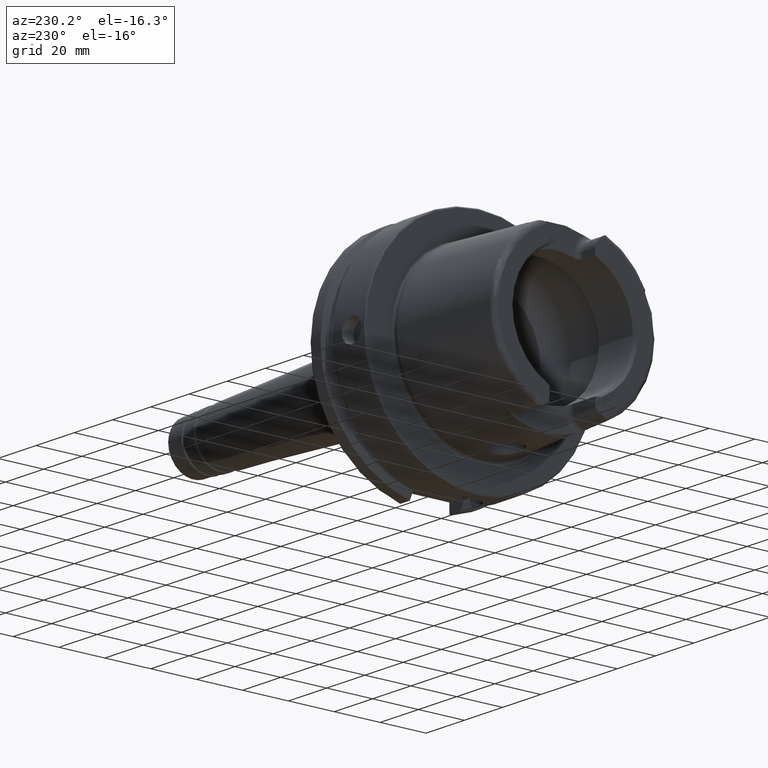
[diagram: clean part render]
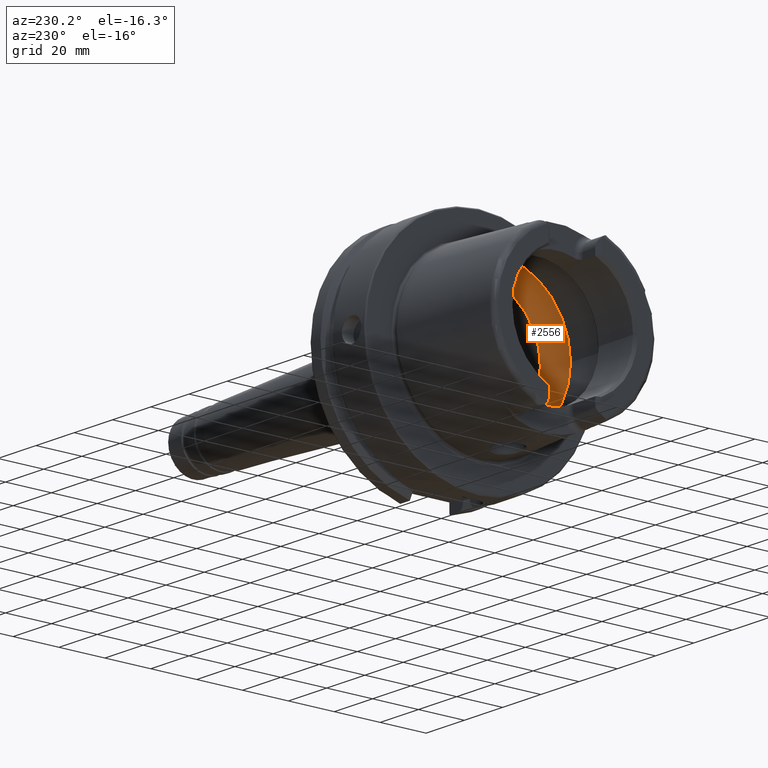
[diagram: same view with one face highlighted and labeled with its STEP entity id]
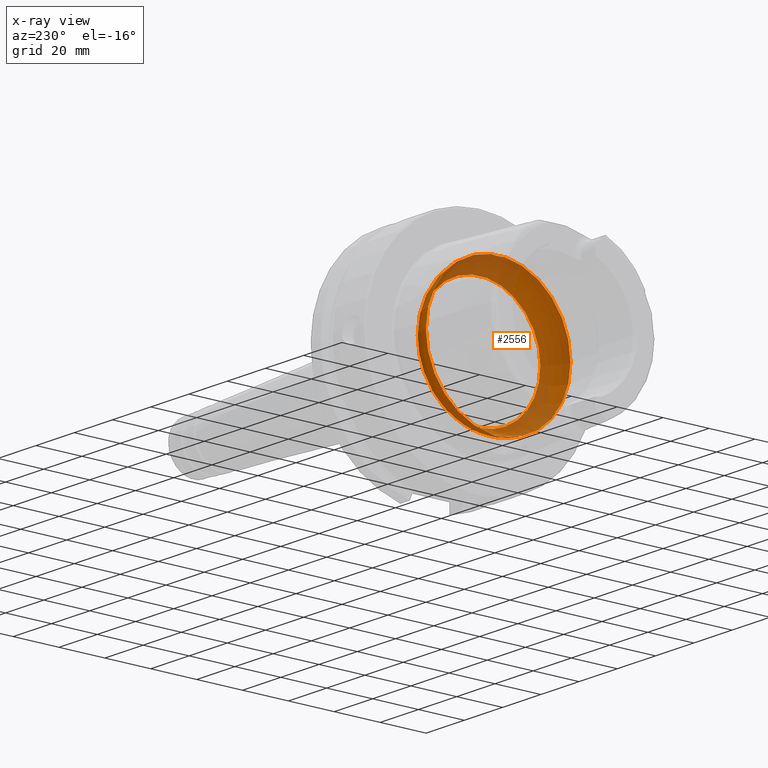
[diagram: x-ray of the same camera — body ghosted, the highlighted face saturated]
A machine part, auxiliary view. The second image highlights one B-rep face of the part: STEP entity #2556.
The next image is the same camera in x-ray: the body ghosted, the highlighted face saturated — about 35% of this face is hidden behind the body in this view.
In plain terms, the highlighted toroidal blend (fillet) surface has major radius 19.5 mm and minor (blend) radius 12 mm.
Its self-contained STEP definition (entity closure, byte-faithful):
#48=B_SPLINE_CURVE_WITH_KNOTS('',3,(#4603,#4604,#4605,#4606,#4607,#4608,
#4609,#4610,#4611,#4612),.UNSPECIFIED.,.F.,.F.,(4,2,2,2,4),(-0.606113644645353,
-0.532141714710631,-0.407956541554012,-0.344441109025195,-0.303157612487306),
 .UNSPECIFIED.);
#50=B_SPLINE_CURVE_WITH_KNOTS('',3,(#4645,#4646,#4647,#4648,#4649,#4650,
#4651,#4652,#4653,#4654),.UNSPECIFIED.,.F.,.F.,(4,2,2,2,4),(-0.303157612487306,
-0.297161587155601,-0.247817233363509,-0.174446982686599,0.),
 .UNSPECIFIED.);
#53=B_SPLINE_CURVE_WITH_KNOTS('',3,(#4795,#4796,#4797,#4798,#4799,#4800,
#4801,#4802,#4803,#4804),.UNSPECIFIED.,.F.,.F.,(4,2,2,2,4),(-0.606113644645388,
-0.532141714710621,-0.407956541553997,-0.344441109025146,-0.303157612487227),
 .UNSPECIFIED.);
#55=B_SPLINE_CURVE_WITH_KNOTS('',3,(#4837,#4838,#4839,#4840,#4841,#4842,
#4843,#4844,#4845,#4846),.UNSPECIFIED.,.F.,.F.,(4,2,2,2,4),(-0.303157612487227,
-0.297161587155532,-0.247817233363497,-0.174446982686607,0.),
 .UNSPECIFIED.);
#479=FACE_OUTER_BOUND('',#619,.T.);
#619=EDGE_LOOP('',(#1995,#1996,#1997,#1998,#1999,#2000,#2001,#2002,#2003,
#2004,#2005,#2006));
#827=CIRCLE('',#2835,31.5);
#831=CIRCLE('',#2839,31.5);
#832=CIRCLE('',#2840,31.5);
#833=CIRCLE('',#2842,26.5);
#834=CIRCLE('',#2843,26.5);
#835=CIRCLE('',#2844,26.5);
#836=CIRCLE('',#2845,12.);
#1083=VERTEX_POINT('',#4600);
#1084=VERTEX_POINT('',#4602);
#1085=VERTEX_POINT('',#4613);
#1088=VERTEX_POINT('',#4793);
#1089=VERTEX_POINT('',#4794);
#1090=VERTEX_POINT('',#4805);
#1092=VERTEX_POINT('',#4851);
#1096=VERTEX_POINT('',#4863);
#1097=VERTEX_POINT('',#4864);
#1098=VERTEX_POINT('',#4866);
#1415=EDGE_CURVE('',#1084,#1083,#48,.T.);
#1417=EDGE_CURVE('',#1083,#1085,#50,.T.);
#1421=EDGE_CURVE('',#1088,#1089,#53,.T.);
#1423=EDGE_CURVE('',#1089,#1090,#55,.T.);
#1426=EDGE_CURVE('',#1092,#1088,#827,.T.);
#1431=EDGE_CURVE('',#1085,#1092,#831,.T.);
#1432=EDGE_CURVE('',#1090,#1084,#832,.T.);
#1433=EDGE_CURVE('',#1096,#1097,#833,.T.);
#1434=EDGE_CURVE('',#1098,#1096,#834,.T.);
#1435=EDGE_CURVE('',#1097,#1098,#835,.T.);
#1436=EDGE_CURVE('',#1097,#1083,#836,.T.);
#1995=ORIENTED_EDGE('',*,*,#1433,.F.);
#1996=ORIENTED_EDGE('',*,*,#1434,.F.);
#1997=ORIENTED_EDGE('',*,*,#1435,.F.);
#1998=ORIENTED_EDGE('',*,*,#1436,.T.);
#1999=ORIENTED_EDGE('',*,*,#1417,.T.);
#2000=ORIENTED_EDGE('',*,*,#1431,.T.);
#2001=ORIENTED_EDGE('',*,*,#1426,.T.);
#2002=ORIENTED_EDGE('',*,*,#1421,.T.);
#2003=ORIENTED_EDGE('',*,*,#1423,.T.);
#2004=ORIENTED_EDGE('',*,*,#1432,.T.);
#2005=ORIENTED_EDGE('',*,*,#1415,.T.);
#2006=ORIENTED_EDGE('',*,*,#1436,.F.);
#2483=TOROIDAL_SURFACE('',#2841,19.5,12.);
#2556=ADVANCED_FACE('',(#479),#2483,.F.);
#2835=AXIS2_PLACEMENT_3D('',#4852,#3427,#3428);
#2839=AXIS2_PLACEMENT_3D('',#4860,#3436,#3437);
#2840=AXIS2_PLACEMENT_3D('',#4861,#3438,#3439);
#2841=AXIS2_PLACEMENT_3D('',#4862,#3440,#3441);
#2842=AXIS2_PLACEMENT_3D('',#4865,#3442,#3443);
#2843=AXIS2_PLACEMENT_3D('',#4867,#3444,#3445);
#2844=AXIS2_PLACEMENT_3D('',#4868,#3446,#3447);
#2845=AXIS2_PLACEMENT_3D('',#4869,#3448,#3449);
#3427=DIRECTION('center_axis',(-1.,0.,0.));
#3428=DIRECTION('ref_axis',(0.,0.,1.));
#3436=DIRECTION('center_axis',(-1.,0.,0.));
#3437=DIRECTION('ref_axis',(0.,0.,1.));
#3438=DIRECTION('center_axis',(-1.,0.,0.));
#3439=DIRECTION('ref_axis',(0.,0.,1.));
#3440=DIRECTION('center_axis',(-1.,0.,0.));
#3441=DIRECTION('ref_axis',(0.,0.,1.));
#3442=DIRECTION('center_axis',(-1.,0.,0.));
#3443=DIRECTION('ref_axis',(0.,0.,1.));
#3444=DIRECTION('center_axis',(-1.,0.,0.));
#3445=DIRECTION('ref_axis',(0.,0.,1.));
#3446=DIRECTION('center_axis',(-1.,0.,0.));
#3447=DIRECTION('ref_axis',(0.,0.,1.));
#3448=DIRECTION('center_axis',(0.,1.,-1.22464679914735E-16));
#3449=DIRECTION('ref_axis',(0.,-1.22464679914735E-16,-1.));
#4600=CARTESIAN_POINT('',(-9.,8.53116613017712E-16,-31.4767398822284));
#4602=CARTESIAN_POINT('',(-9.74679434480896,2.89893607109041,-31.3663222207471));
#4603=CARTESIAN_POINT('Ctrl Pts',(-9.74679434480898,2.89893607109041,-31.3663222207471));
#4604=CARTESIAN_POINT('Ctrl Pts',(-9.62803941549252,2.68373847757038,-31.3862111979079));
#4605=CARTESIAN_POINT('Ctrl Pts',(-9.52250794022164,2.46123932380009,-31.4027818190648));
#4606=CARTESIAN_POINT('Ctrl Pts',(-9.27707880675082,1.84905941644996,-31.4398086116956));
#4607=CARTESIAN_POINT('Ctrl Pts',(-9.16318715371328,1.45014848778478,-31.4552463037839));
#4608=CARTESIAN_POINT('Ctrl Pts',(-9.05448554629564,0.83406948853474,-31.4697090180031));
#4609=CARTESIAN_POINT('Ctrl Pts',(-9.02875508102837,0.623753972628784,-31.4730355369691));
#4610=CARTESIAN_POINT('Ctrl Pts',(-9.00473516300901,0.275210595137741,-31.4761342948647));
#4611=CARTESIAN_POINT('Ctrl Pts',(-9.,0.13762179988616,-31.4767398822284));
#4612=CARTESIAN_POINT('Ctrl Pts',(-9.,9.71445146547012E-16,-31.4767398822284));
#4613=CARTESIAN_POINT('',(-9.74679434480896,-2.89893607109041,-31.3663222207471));
#4645=CARTESIAN_POINT('Ctrl Pts',(-9.,9.83483832277069E-16,-31.4767398822284));
#4646=CARTESIAN_POINT('Ctrl Pts',(-9.,-0.0199882245331354,-31.4767398822284));
#4647=CARTESIAN_POINT('Ctrl Pts',(-9.00009988237686,-0.0399771452902417,
-31.4767270717783));
#4648=CARTESIAN_POINT('Ctrl Pts',(-9.00194380057016,-0.224464346212316,
-31.4764905359115));
#4649=CARTESIAN_POINT('Ctrl Pts',(-9.01035297969853,-0.388827878343727,
-31.4754151841588));
#4650=CARTESIAN_POINT('Ctrl Pts',(-9.0480310904853,-0.796171644009328,-31.4705320701686));
#4651=CARTESIAN_POINT('Ctrl Pts',(-9.08543037238412,-1.03809779370842,-31.4656619259797));
#4652=CARTESIAN_POINT('Ctrl Pts',(-9.26119500081336,-1.84501079512327,-31.441850680052));
#4653=CARTESIAN_POINT('Ctrl Pts',(-9.4667592962906,-2.39148034786879,-31.4132222586341));
#4654=CARTESIAN_POINT('Ctrl Pts',(-9.74679434480898,-2.89893607109041,-31.3663222207471));
#4793=CARTESIAN_POINT('',(-9.74679434480896,-2.89893607109042,31.3663222207471));
#4794=CARTESIAN_POINT('',(-8.99999999999999,7.8372767397864E-16,31.4767398822284));
#4795=CARTESIAN_POINT('Ctrl Pts',(-9.74679434480898,-2.89893607109042,31.3663222207471));
#4796=CARTESIAN_POINT('Ctrl Pts',(-9.62803941549257,-2.6837384775705,31.3862111979079));
#4797=CARTESIAN_POINT('Ctrl Pts',(-9.52250794022172,-2.46123932380032,31.4027818190648));
#4798=CARTESIAN_POINT('Ctrl Pts',(-9.27707880675083,-1.84905941645004,31.4398086116956));
#4799=CARTESIAN_POINT('Ctrl Pts',(-9.16318715371328,-1.45014848778485,31.4552463037839));
#4800=CARTESIAN_POINT('Ctrl Pts',(-9.05448554629561,-0.834069488534672,
31.4697090180031));
#4801=CARTESIAN_POINT('Ctrl Pts',(-9.02875508102836,-0.623753972628598,
31.4730355369691));
#4802=CARTESIAN_POINT('Ctrl Pts',(-9.00473516300902,-0.275210595137865,
31.4761342948647));
#4803=CARTESIAN_POINT('Ctrl Pts',(-8.99999999999999,-0.137621799886392,
31.4767398822284));
#4804=CARTESIAN_POINT('Ctrl Pts',(-8.99999999999999,9.0205620750794E-16,
31.4767398822284));
#4805=CARTESIAN_POINT('',(-9.74679434480896,2.89893607109042,31.3663222207471));
#4837=CARTESIAN_POINT('Ctrl Pts',(-8.99999999999999,8.7920239009422E-16,
31.4767398822284));
#4838=CARTESIAN_POINT('Ctrl Pts',(-8.99999999999999,0.0199882245331231,
31.4767398822284));
#4839=CARTESIAN_POINT('Ctrl Pts',(-9.00009988237684,0.0399771452902225,
31.4767270717783));
#4840=CARTESIAN_POINT('Ctrl Pts',(-9.00194380057014,0.224464346212396,31.4764905359115));
#4841=CARTESIAN_POINT('Ctrl Pts',(-9.01035297969852,0.388827878343765,31.4754151841588));
#4842=CARTESIAN_POINT('Ctrl Pts',(-9.0480310904853,0.79617164400948,31.4705320701686));
#4843=CARTESIAN_POINT('Ctrl Pts',(-9.08543037238414,1.03809779370849,31.4656619259797));
#4844=CARTESIAN_POINT('Ctrl Pts',(-9.26119500081334,1.84501079512323,31.441850680052));
#4845=CARTESIAN_POINT('Ctrl Pts',(-9.46675929629059,2.39148034786878,31.4132222586341));
#4846=CARTESIAN_POINT('Ctrl Pts',(-9.74679434480898,2.89893607109043,31.3663222207471));
#4851=CARTESIAN_POINT('',(-9.74679434480896,-31.5,3.85763741731416E-15));
#4852=CARTESIAN_POINT('Origin',(-9.74679434480896,0.,0.));
#4860=CARTESIAN_POINT('Origin',(-9.74679434480896,0.,0.));
#4861=CARTESIAN_POINT('Origin',(-9.74679434480896,0.,0.));
#4862=CARTESIAN_POINT('Origin',(-9.74679434480896,0.,0.));
#4863=CARTESIAN_POINT('',(0.,26.5,0.));
#4864=CARTESIAN_POINT('',(0.,-3.24531401774049E-15,-26.5));
#4865=CARTESIAN_POINT('Origin',(0.,0.,0.));
#4866=CARTESIAN_POINT('',(0.,-26.5,3.24531401774049E-15));
#4867=CARTESIAN_POINT('Origin',(0.,0.,0.));
#4868=CARTESIAN_POINT('Origin',(0.,0.,0.));
#4869=CARTESIAN_POINT('Origin',(-9.74679434480896,-2.38806125833734E-15,
-19.5));